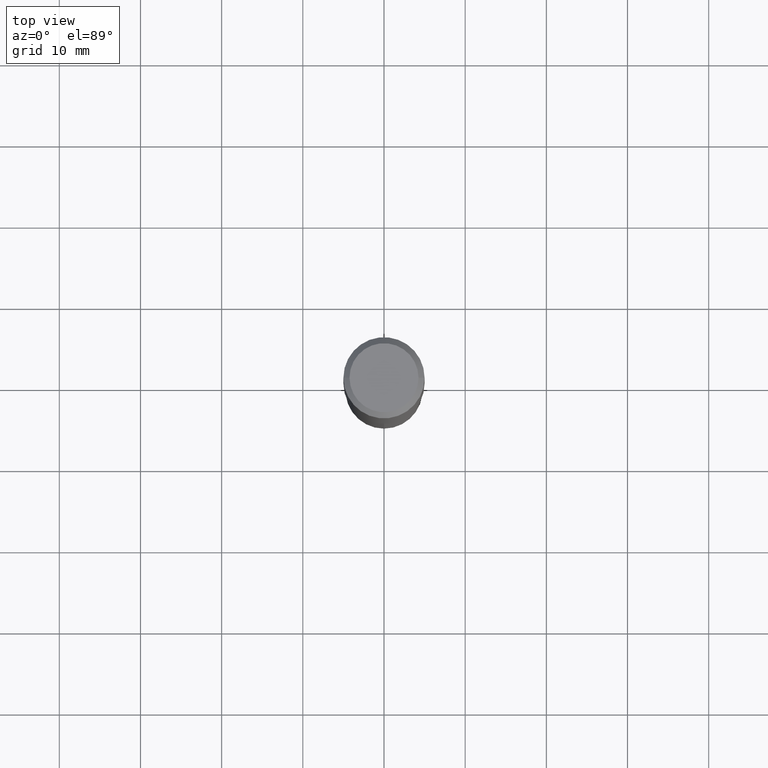
[diagram: clean part render]
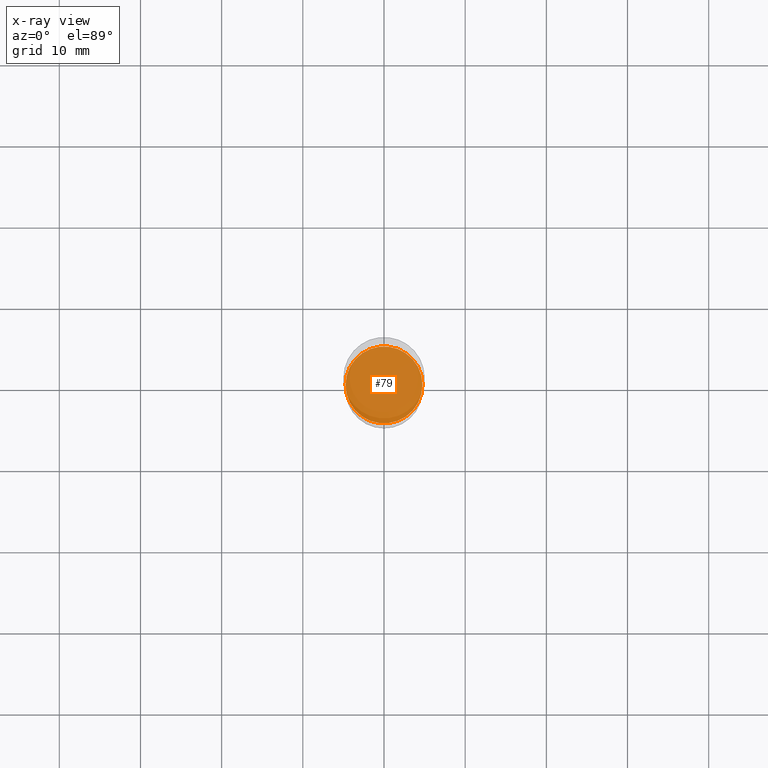
[diagram: x-ray — body ghosted, one internal face saturated and labeled with its STEP entity id]
A machine part, top view, then the same camera in x-ray: the body is ghosted and one INTERNAL B-rep face — a face not visible from any outside direction — is saturated and labeled: STEP entity #79.
In plain terms, the highlighted planar face has unit normal (-0, 0, 1).
Its self-contained STEP definition (entity closure, byte-faithful):
#21 = FACE_OUTER_BOUND ( 'NONE', #424, .T. ) ;
#25 = EDGE_CURVE ( 'NONE', #335, #68, #336, .T. ) ;
#68 = VERTEX_POINT ( 'NONE', #442 ) ;
#71 = CARTESIAN_POINT ( 'NONE',  ( 0.1864999999999999991, -8.381300953892967589E-15, -2.027500000000000302 ) ) ;
#79 = ADVANCED_FACE ( 'NONE', ( #21 ), #163, .F. ) ;
#96 = CARTESIAN_POINT ( 'NONE',  ( 4.958188004540364383E-29, -7.078978414504478595E-15, -2.027500000000000302 ) ) ;
#102 = DIRECTION ( 'NONE',  ( 1.000000000000000000, -6.982962677686268288E-15, 0.000000000000000000 ) ) ;
#115 = CARTESIAN_POINT ( 'NONE',  ( 4.958188004540364383E-29, -7.078978414504478595E-15, -2.027500000000000302 ) ) ;
#123 = DIRECTION ( 'NONE',  ( 1.000000000000000000, -6.982962677686265922E-15, 4.876176775795935793E-29 ) ) ;
#163 = PLANE ( 'NONE',  #287 ) ;
#180 = ORIENTED_EDGE ( 'NONE', *, *, #25, .F. ) ;
#224 = DIRECTION ( 'NONE',  ( -2.445468806185136597E-29, 3.491481338843145583E-15, 1.000000000000000000 ) ) ;
#232 = ORIENTED_EDGE ( 'NONE', *, *, #444, .F. ) ;
#265 = AXIS2_PLACEMENT_3D ( 'NONE', #96, #224, #102 ) ;
#286 = AXIS2_PLACEMENT_3D ( 'NONE', #115, #432, #407 ) ;
#287 = AXIS2_PLACEMENT_3D ( 'NONE', #326, #479, #123 ) ;
#326 = CARTESIAN_POINT ( 'NONE',  ( 2.884333529595955966E-29, -1.004885605909123034E-14, -2.027500000000000302 ) ) ;
#335 = VERTEX_POINT ( 'NONE', #71 ) ;
#336 = CIRCLE ( 'NONE', #286, 0.1864999999999999991 ) ;
#407 = DIRECTION ( 'NONE',  ( 1.000000000000000000, -6.982962677686268288E-15, 0.000000000000000000 ) ) ;
#424 = EDGE_LOOP ( 'NONE', ( #180, #232 ) ) ;
#432 = DIRECTION ( 'NONE',  ( -2.445468806185136597E-29, 3.491481338843145583E-15, 1.000000000000000000 ) ) ;
#433 = CIRCLE ( 'NONE', #265, 0.1864999999999999991 ) ;
#442 = CARTESIAN_POINT ( 'NONE',  ( -0.1864999999999999991, -5.751166985137780553E-15, -2.027500000000000302 ) ) ;
#444 = EDGE_CURVE ( 'NONE', #68, #335, #433, .T. ) ;
#479 = DIRECTION ( 'NONE',  ( -2.438088387897960049E-29, 3.491481338843145188E-15, 1.000000000000000000 ) ) ;